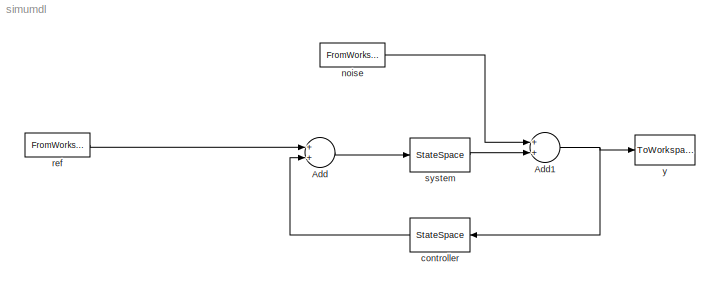
MODEL simumdl
KIND model
BLOCK [Sum] Add
  InputSameDT = off
  OutDataTypeStr = Inherit: Inherit via internal rule
  Ports = [2, 1]
  SID = 3
  SaturateOnIntegerOverflow = off
BLOCK [Sum] Add1
  InputSameDT = off
  OutDataTypeStr = Inherit: Inherit via internal rule
  Ports = [2, 1]
  SID = 4
  SaturateOnIntegerOverflow = off
BLOCK [StateSpace] controller
  A = Ac
  B = Bc
  C = Cc
  D = Dc
  SID = 2
BLOCK [FromWorkspace] noise
  SID = 6
  SampleTime = 0
  VariableName = [t e]
  ZeroCross = on
BLOCK [FromWorkspace] ref
  SID = 5
  SampleTime = 0
  VariableName = [t r]
  ZeroCross = on
BLOCK [StateSpace] system
  A = A
  B = B
  C = C
  D = D
  SID = 1
BLOCK [ToWorkspace] y
  MaxDataPoints = inf
  Ports = [1]
  SID = 7
  SampleTime = Tsd
  SaveFormat = Array
  VariableName = y2
NET Add1:1 -> controller:1, y:1
LINE Add:1 -> system:1
LINE controller:1 -> Add:2
LINE noise:1 -> Add1:1
LINE ref:1 -> Add:1
LINE system:1 -> Add1:2
note: NET lines group one-source signal fan-out (src -> all destinations, sorted); 1:1 wires keep LINE
